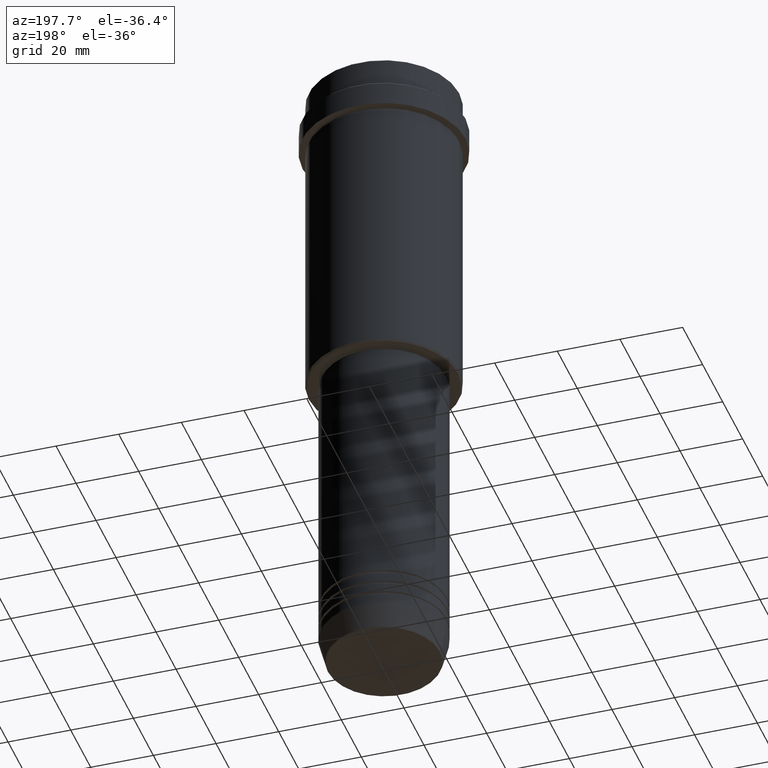
[diagram: clean part render]
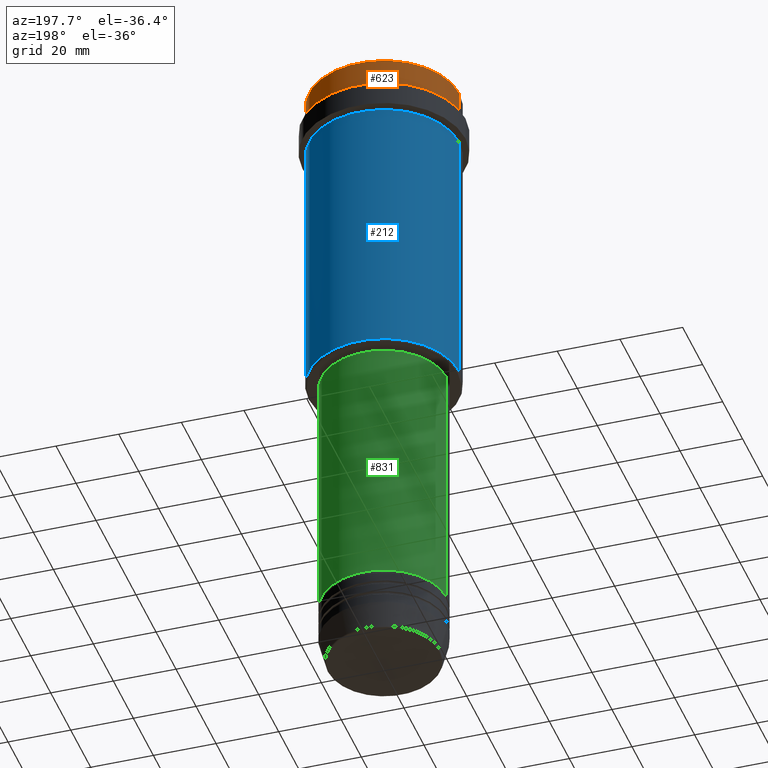
[diagram: same view with three faces highlighted in distinct colors, each labeled with its STEP entity id]
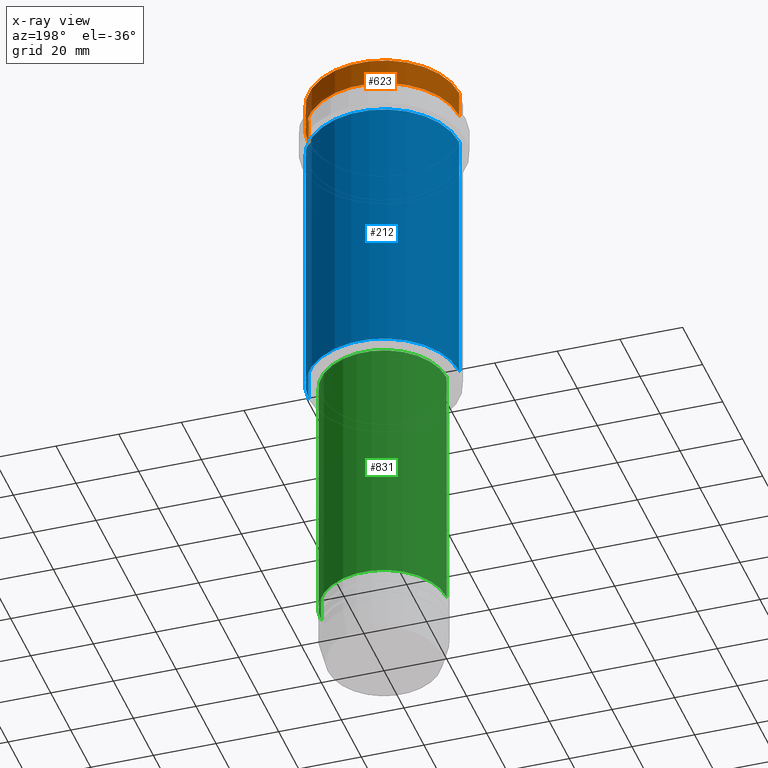
[diagram: x-ray of the same camera — body ghosted, the three highlighted faces saturated]
A machine part, auxiliary view with three faces highlighted in distinct colors.
The next image is the same camera in x-ray (body ghosted, the three faces saturated) — at least one of them is partly hidden behind the body in this view.
Their STEP definitions:

[orange] entity #623 — the highlighted cylindrical surface (partial cylindrical patch) has radius 24 mm, axis along (-0, -0, 1).
#4 = EDGE_LOOP ( 'NONE', ( #1362, #326, #1131, #660 ) ) ;
#8 = CARTESIAN_POINT ( 'NONE',  ( 0.000000000000000000, 0.000000000000000000, -0.5000000000000213163 ) ) ;
#19 = VERTEX_POINT ( 'NONE', #354 ) ;
#104 = DIRECTION ( 'NONE',  ( 1.000000000000000000, 0.000000000000000000, 0.000000000000000000 ) ) ;
#125 = CIRCLE ( 'NONE', #1292, 23.99999999999997158 ) ;
#129 = CARTESIAN_POINT ( 'NONE',  ( -23.99999999999998579, 2.939152317953646317E-15, -0.5000000000000213163 ) ) ;
#267 = AXIS2_PLACEMENT_3D ( 'NONE', #8, #1411, #104 ) ;
#282 = DIRECTION ( 'NONE',  ( 1.000000000000000000, 0.000000000000000000, 0.000000000000000000 ) ) ;
#326 = ORIENTED_EDGE ( 'NONE', *, *, #1284, .T. ) ;
#334 = AXIS2_PLACEMENT_3D ( 'NONE', #798, #599, #282 ) ;
#354 = CARTESIAN_POINT ( 'NONE',  ( 23.99999999999998579, 0.000000000000000000, -0.5000000000000213163 ) ) ;
#367 = CYLINDRICAL_SURFACE ( 'NONE', #334, 23.99999999999998579 ) ;
#502 = DIRECTION ( 'NONE',  ( -0.000000000000000000, -0.000000000000000000, 1.000000000000000000 ) ) ;
#563 = VERTEX_POINT ( 'NONE', #821 ) ;
#599 = DIRECTION ( 'NONE',  ( -0.000000000000000000, -0.000000000000000000, 1.000000000000000000 ) ) ;
#605 = LINE ( 'NONE', #1042, #1245 ) ;
#623 = ADVANCED_FACE ( 'NONE', ( #1142 ), #367, .T. ) ;
#645 = CARTESIAN_POINT ( 'NONE',  ( 0.000000000000000000, 0.000000000000000000, -8.999999999999998224 ) ) ;
#660 = ORIENTED_EDGE ( 'NONE', *, *, #1301, .F. ) ;
#669 = LINE ( 'NONE', #1120, #1268 ) ;
#798 = CARTESIAN_POINT ( 'NONE',  ( 0.000000000000000000, 0.000000000000000000, 0.000000000000000000 ) ) ;
#821 = CARTESIAN_POINT ( 'NONE',  ( -23.99999999999997158, 2.939152317953645133E-15, -8.999999999999998224 ) ) ;
#861 = EDGE_CURVE ( 'NONE', #1296, #19, #1267, .T. ) ;
#917 = VERTEX_POINT ( 'NONE', #990 ) ;
#990 = CARTESIAN_POINT ( 'NONE',  ( 23.99999999999997158, 0.000000000000000000, -8.999999999999998224 ) ) ;
#1042 = CARTESIAN_POINT ( 'NONE',  ( -23.99999999999998579, 2.939152317953646317E-15, 0.000000000000000000 ) ) ;
#1100 = DIRECTION ( 'NONE',  ( -0.000000000000000000, -0.000000000000000000, 1.000000000000000000 ) ) ;
#1120 = CARTESIAN_POINT ( 'NONE',  ( 23.99999999999998579, 0.000000000000000000, 0.000000000000000000 ) ) ;
#1131 = ORIENTED_EDGE ( 'NONE', *, *, #861, .T. ) ;
#1142 = FACE_OUTER_BOUND ( 'NONE', #4, .T. ) ;
#1245 = VECTOR ( 'NONE', #502, 1000.000000000000000 ) ;
#1252 = EDGE_CURVE ( 'NONE', #917, #563, #125, .T. ) ;
#1261 = DIRECTION ( 'NONE',  ( -0.000000000000000000, -0.000000000000000000, 1.000000000000000000 ) ) ;
#1267 = CIRCLE ( 'NONE', #267, 23.99999999999998579 ) ;
#1268 = VECTOR ( 'NONE', #1100, 1000.000000000000000 ) ;
#1284 = EDGE_CURVE ( 'NONE', #563, #1296, #605, .T. ) ;
#1292 = AXIS2_PLACEMENT_3D ( 'NONE', #645, #1261, #1300 ) ;
#1296 = VERTEX_POINT ( 'NONE', #129 ) ;
#1300 = DIRECTION ( 'NONE',  ( 1.000000000000000000, 0.000000000000000000, 0.000000000000000000 ) ) ;
#1301 = EDGE_CURVE ( 'NONE', #917, #19, #669, .T. ) ;
#1362 = ORIENTED_EDGE ( 'NONE', *, *, #1252, .T. ) ;
#1411 = DIRECTION ( 'NONE',  ( 0.000000000000000000, 0.000000000000000000, -1.000000000000000000 ) ) ;

[blue] entity #212 — the highlighted cylindrical surface (partial cylindrical patch) has radius 24 mm, axis along (-0, -0, 1).
#57 = CIRCLE ( 'NONE', #244, 23.99999999999998579 ) ;
#62 = CARTESIAN_POINT ( 'NONE',  ( -23.99999999999998579, 2.939152317953646317E-15, -105.5000000000000284 ) ) ;
#63 = CARTESIAN_POINT ( 'NONE',  ( 23.99999999999998579, 0.000000000000000000, 0.000000000000000000 ) ) ;
#65 = CARTESIAN_POINT ( 'NONE',  ( 23.99999999999998579, 0.000000000000000000, -105.5000000000000284 ) ) ;
#90 = EDGE_CURVE ( 'NONE', #1191, #933, #362, .T. ) ;
#124 = CIRCLE ( 'NONE', #1128, 23.99999999999997158 ) ;
#132 = EDGE_CURVE ( 'NONE', #199, #1191, #57, .T. ) ;
#159 = ORIENTED_EDGE ( 'NONE', *, *, #90, .T. ) ;
#163 = CARTESIAN_POINT ( 'NONE',  ( 0.000000000000000000, 0.000000000000000000, 0.000000000000000000 ) ) ;
#189 = ORIENTED_EDGE ( 'NONE', *, *, #132, .T. ) ;
#199 = VERTEX_POINT ( 'NONE', #65 ) ;
#212 = ADVANCED_FACE ( 'NONE', ( #684 ), #368, .T. ) ;
#231 = DIRECTION ( 'NONE',  ( -0.000000000000000000, -0.000000000000000000, 1.000000000000000000 ) ) ;
#240 = VERTEX_POINT ( 'NONE', #386 ) ;
#244 = AXIS2_PLACEMENT_3D ( 'NONE', #1205, #231, #1251 ) ;
#359 = CARTESIAN_POINT ( 'NONE',  ( 0.000000000000000000, 0.000000000000000000, -19.00000000000000711 ) ) ;
#362 = LINE ( 'NONE', #776, #496 ) ;
#368 = CYLINDRICAL_SURFACE ( 'NONE', #766, 23.99999999999998579 ) ;
#386 = CARTESIAN_POINT ( 'NONE',  ( 23.99999999999997158, 0.000000000000000000, -19.00000000000000711 ) ) ;
#469 = VECTOR ( 'NONE', #1063, 1000.000000000000000 ) ;
#496 = VECTOR ( 'NONE', #1087, 1000.000000000000000 ) ;
#600 = DIRECTION ( 'NONE',  ( -0.000000000000000000, -0.000000000000000000, 1.000000000000000000 ) ) ;
#661 = CARTESIAN_POINT ( 'NONE',  ( -23.99999999999997158, 2.939152317953645133E-15, -19.00000000000000711 ) ) ;
#684 = FACE_OUTER_BOUND ( 'NONE', #1096, .T. ) ;
#687 = DIRECTION ( 'NONE',  ( 1.000000000000000000, 0.000000000000000000, 0.000000000000000000 ) ) ;
#735 = ORIENTED_EDGE ( 'NONE', *, *, #1015, .F. ) ;
#757 = EDGE_CURVE ( 'NONE', #199, #240, #1283, .T. ) ;
#766 = AXIS2_PLACEMENT_3D ( 'NONE', #163, #600, #1136 ) ;
#776 = CARTESIAN_POINT ( 'NONE',  ( -23.99999999999998579, 2.939152317953646317E-15, 0.000000000000000000 ) ) ;
#933 = VERTEX_POINT ( 'NONE', #661 ) ;
#1015 = EDGE_CURVE ( 'NONE', #240, #933, #124, .T. ) ;
#1063 = DIRECTION ( 'NONE',  ( -0.000000000000000000, -0.000000000000000000, 1.000000000000000000 ) ) ;
#1087 = DIRECTION ( 'NONE',  ( -0.000000000000000000, -0.000000000000000000, 1.000000000000000000 ) ) ;
#1096 = EDGE_LOOP ( 'NONE', ( #189, #159, #735, #1282 ) ) ;
#1113 = DIRECTION ( 'NONE',  ( -0.000000000000000000, -0.000000000000000000, 1.000000000000000000 ) ) ;
#1128 = AXIS2_PLACEMENT_3D ( 'NONE', #359, #1113, #687 ) ;
#1136 = DIRECTION ( 'NONE',  ( 1.000000000000000000, 0.000000000000000000, 0.000000000000000000 ) ) ;
#1191 = VERTEX_POINT ( 'NONE', #62 ) ;
#1205 = CARTESIAN_POINT ( 'NONE',  ( 0.000000000000000000, 0.000000000000000000, -105.5000000000000284 ) ) ;
#1251 = DIRECTION ( 'NONE',  ( -1.000000000000000000, 0.000000000000000000, 0.000000000000000000 ) ) ;
#1282 = ORIENTED_EDGE ( 'NONE', *, *, #757, .F. ) ;
#1283 = LINE ( 'NONE', #63, #469 ) ;

[green] entity #831 — the highlighted cylindrical surface (partial cylindrical patch) has radius 20 mm, axis along (-0, -0, 1).
#7 = VECTOR ( 'NONE', #929, 1000.000000000000000 ) ;
#18 = CARTESIAN_POINT ( 'NONE',  ( 0.000000000000000000, 0.000000000000000000, -189.9999999999999147 ) ) ;
#32 = EDGE_CURVE ( 'NONE', #911, #646, #859, .T. ) ;
#43 = DIRECTION ( 'NONE',  ( -0.000000000000000000, -0.000000000000000000, 1.000000000000000000 ) ) ;
#56 = VECTOR ( 'NONE', #43, 1000.000000000000000 ) ;
#128 = DIRECTION ( 'NONE',  ( 1.000000000000000000, 0.000000000000000000, 0.000000000000000000 ) ) ;
#138 = CARTESIAN_POINT ( 'NONE',  ( -20.00000000000000000, 2.449293598294706513E-15, -189.9999999999999147 ) ) ;
#186 = CARTESIAN_POINT ( 'NONE',  ( 0.000000000000000000, 0.000000000000000000, 0.000000000000000000 ) ) ;
#224 = DIRECTION ( 'NONE',  ( 1.000000000000000000, 0.000000000000000000, 0.000000000000000000 ) ) ;
#285 = ORIENTED_EDGE ( 'NONE', *, *, #32, .T. ) ;
#315 = AXIS2_PLACEMENT_3D ( 'NONE', #18, #1115, #128 ) ;
#378 = ORIENTED_EDGE ( 'NONE', *, *, #1043, .T. ) ;
#391 = LINE ( 'NONE', #1354, #7 ) ;
#396 = VERTEX_POINT ( 'NONE', #638 ) ;
#403 = FACE_OUTER_BOUND ( 'NONE', #1185, .T. ) ;
#429 = VERTEX_POINT ( 'NONE', #992 ) ;
#490 = ORIENTED_EDGE ( 'NONE', *, *, #531, .F. ) ;
#515 = DIRECTION ( 'NONE',  ( 1.000000000000000000, 0.000000000000000000, 0.000000000000000000 ) ) ;
#531 = EDGE_CURVE ( 'NONE', #396, #429, #1080, .T. ) ;
#564 = EDGE_CURVE ( 'NONE', #911, #396, #391, .T. ) ;
#638 = CARTESIAN_POINT ( 'NONE',  ( 20.00000000000000000, 0.000000000000000000, -107.0000000000000000 ) ) ;
#646 = VERTEX_POINT ( 'NONE', #138 ) ;
#831 = ADVANCED_FACE ( 'NONE', ( #403 ), #1163, .T. ) ;
#859 = CIRCLE ( 'NONE', #315, 20.00000000000000000 ) ;
#881 = AXIS2_PLACEMENT_3D ( 'NONE', #186, #1055, #515 ) ;
#911 = VERTEX_POINT ( 'NONE', #1193 ) ;
#918 = CARTESIAN_POINT ( 'NONE',  ( -20.00000000000000000, 2.449293598294706513E-15, 0.000000000000000000 ) ) ;
#929 = DIRECTION ( 'NONE',  ( -0.000000000000000000, -0.000000000000000000, 1.000000000000000000 ) ) ;
#992 = CARTESIAN_POINT ( 'NONE',  ( -20.00000000000000000, 2.449293598294706513E-15, -107.0000000000000000 ) ) ;
#1043 = EDGE_CURVE ( 'NONE', #646, #429, #1141, .T. ) ;
#1055 = DIRECTION ( 'NONE',  ( -0.000000000000000000, -0.000000000000000000, 1.000000000000000000 ) ) ;
#1060 = AXIS2_PLACEMENT_3D ( 'NONE', #1209, #1198, #224 ) ;
#1080 = CIRCLE ( 'NONE', #1060, 20.00000000000000000 ) ;
#1115 = DIRECTION ( 'NONE',  ( -0.000000000000000000, -0.000000000000000000, 1.000000000000000000 ) ) ;
#1141 = LINE ( 'NONE', #918, #56 ) ;
#1161 = ORIENTED_EDGE ( 'NONE', *, *, #564, .F. ) ;
#1163 = CYLINDRICAL_SURFACE ( 'NONE', #881, 20.00000000000000000 ) ;
#1185 = EDGE_LOOP ( 'NONE', ( #285, #378, #490, #1161 ) ) ;
#1193 = CARTESIAN_POINT ( 'NONE',  ( 20.00000000000000000, 0.000000000000000000, -189.9999999999999147 ) ) ;
#1198 = DIRECTION ( 'NONE',  ( -0.000000000000000000, -0.000000000000000000, 1.000000000000000000 ) ) ;
#1209 = CARTESIAN_POINT ( 'NONE',  ( 0.000000000000000000, 0.000000000000000000, -107.0000000000000000 ) ) ;
#1354 = CARTESIAN_POINT ( 'NONE',  ( 20.00000000000000000, 0.000000000000000000, 0.000000000000000000 ) ) ;